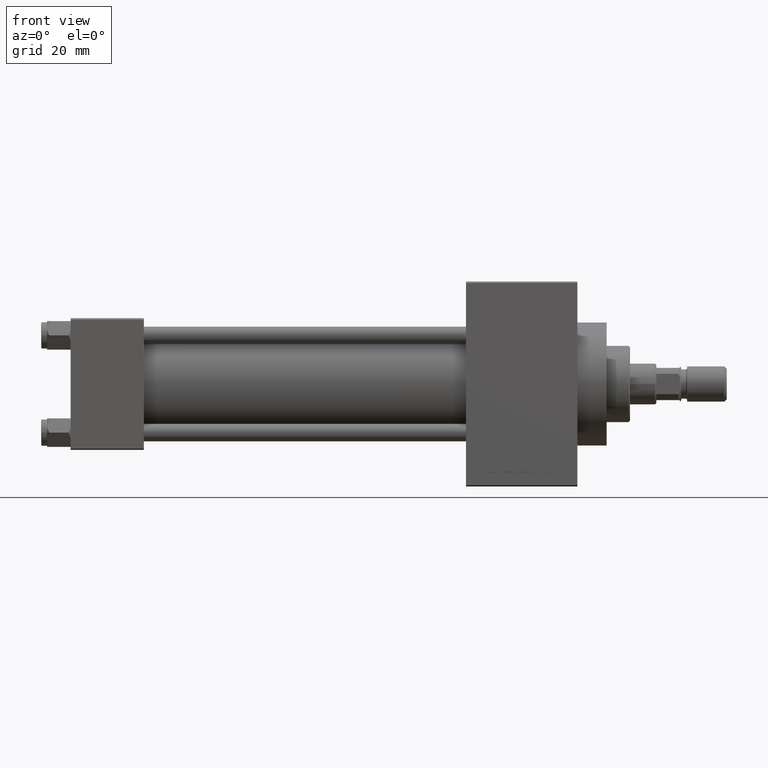
[diagram: clean part render]
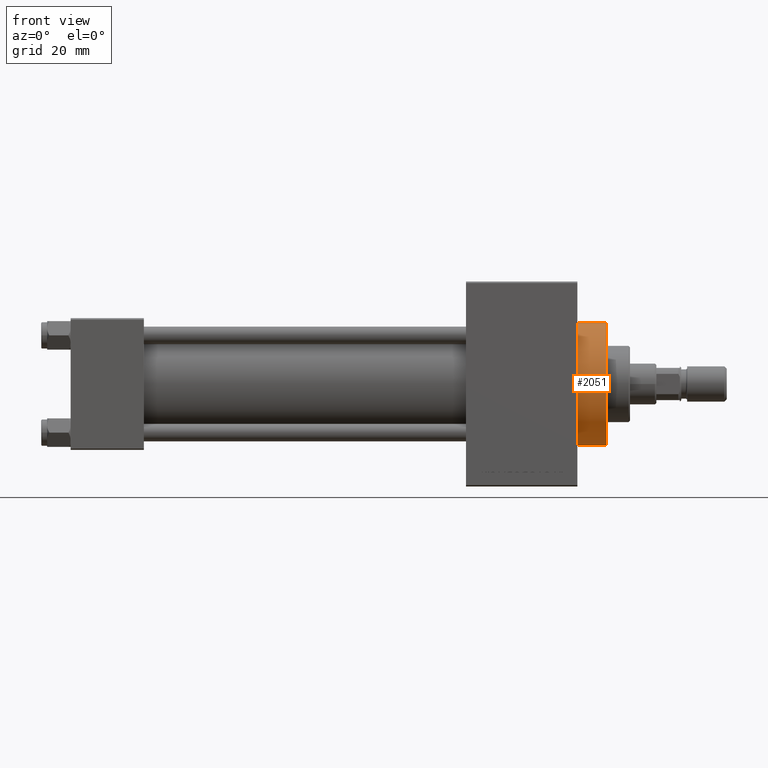
[diagram: same view with one face highlighted and labeled with its STEP entity id]
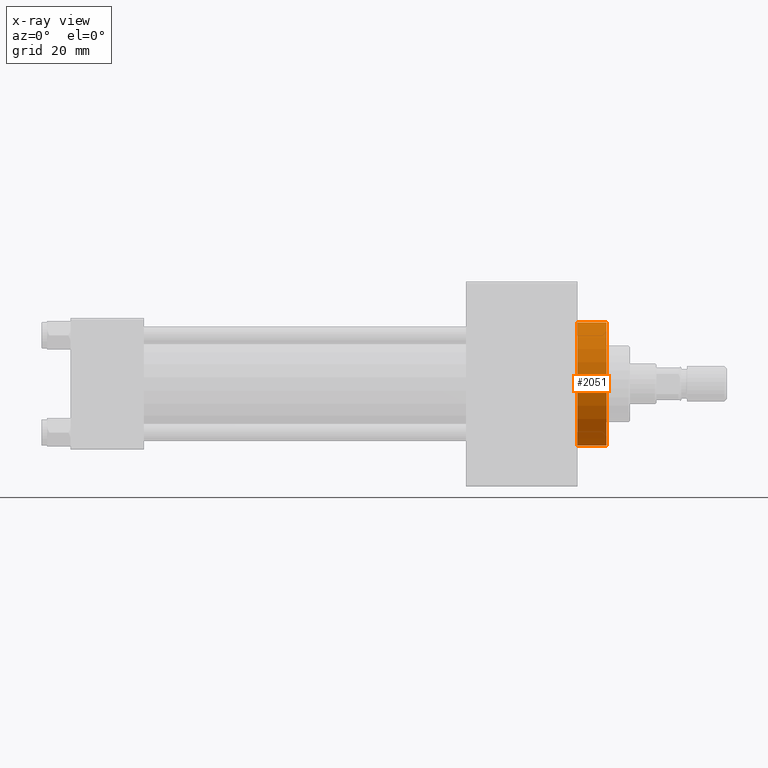
[diagram: x-ray of the same camera — body ghosted, the highlighted face saturated]
A machine part, front view. The second image highlights one B-rep face of the part: STEP entity #2051.
The next image is the same camera in x-ray: the body ghosted, the highlighted face saturated — about 0% of this face is hidden behind the body in this view.
In plain terms, the highlighted cylindrical surface (partial cylindrical patch) has radius 21 mm, axis along (-1, -0, -0).
Its self-contained STEP definition (entity closure, byte-faithful):
#450 = DIRECTION ( 'NONE',  ( 0.000000000000000000, 0.000000000000000000, 1.000000000000000000 ) ) ;
#2051 = ADVANCED_FACE ( 'NONE', ( #34764 ), #8204, .T. ) ;
#3027 = VERTEX_POINT ( 'NONE', #10419 ) ;
#3445 = AXIS2_PLACEMENT_3D ( 'NONE', #31102, #46343, #8970 ) ;
#5329 = CARTESIAN_POINT ( 'NONE',  ( 183.0000000000000284, 0.000000000000000000, 21.00000000000000000 ) ) ;
#7644 = VECTOR ( 'NONE', #14161, 1000.000000000000000 ) ;
#8204 = CYLINDRICAL_SURFACE ( 'NONE', #45529, 21.00000000000000000 ) ;
#8880 = ORIENTED_EDGE ( 'NONE', *, *, #34879, .T. ) ;
#8970 = DIRECTION ( 'NONE',  ( 0.000000000000000000, 0.000000000000000000, -1.000000000000000000 ) ) ;
#9217 = LINE ( 'NONE', #36495, #48210 ) ;
#10419 = CARTESIAN_POINT ( 'NONE',  ( 173.0000000000000284, 2.571758278209441661E-15, -21.00000000000000000 ) ) ;
#14161 = DIRECTION ( 'NONE',  ( -1.000000000000000000, -0.000000000000000000, -0.000000000000000000 ) ) ;
#15473 = CARTESIAN_POINT ( 'NONE',  ( 173.0000000000000284, 0.000000000000000000, 21.00000000000000000 ) ) ;
#18386 = VERTEX_POINT ( 'NONE', #28568 ) ;
#19921 = EDGE_CURVE ( 'NONE', #18386, #3027, #21177, .T. ) ;
#19984 = CARTESIAN_POINT ( 'NONE',  ( 183.0000000000000284, 0.000000000000000000, 0.000000000000000000 ) ) ;
#20272 = AXIS2_PLACEMENT_3D ( 'NONE', #45363, #46096, #41870 ) ;
#21177 = LINE ( 'NONE', #48441, #7644 ) ;
#25040 = CIRCLE ( 'NONE', #3445, 21.00000000000000000 ) ;
#27188 = ORIENTED_EDGE ( 'NONE', *, *, #19921, .F. ) ;
#27774 = DIRECTION ( 'NONE',  ( -1.000000000000000000, -0.000000000000000000, -0.000000000000000000 ) ) ;
#28568 = CARTESIAN_POINT ( 'NONE',  ( 183.0000000000000284, 2.571758278209441661E-15, -21.00000000000000000 ) ) ;
#31102 = CARTESIAN_POINT ( 'NONE',  ( 183.0000000000000284, 0.000000000000000000, 0.000000000000000000 ) ) ;
#32320 = EDGE_LOOP ( 'NONE', ( #27188, #46694, #44652, #8880 ) ) ;
#34764 = FACE_OUTER_BOUND ( 'NONE', #32320, .T. ) ;
#34879 = EDGE_CURVE ( 'NONE', #41045, #3027, #43400, .T. ) ;
#35129 = EDGE_CURVE ( 'NONE', #40213, #18386, #25040, .T. ) ;
#36495 = CARTESIAN_POINT ( 'NONE',  ( 183.0000000000000284, 0.000000000000000000, 21.00000000000000000 ) ) ;
#38362 = EDGE_CURVE ( 'NONE', #40213, #41045, #9217, .T. ) ;
#39238 = DIRECTION ( 'NONE',  ( -1.000000000000000000, -0.000000000000000000, -0.000000000000000000 ) ) ;
#40213 = VERTEX_POINT ( 'NONE', #5329 ) ;
#41045 = VERTEX_POINT ( 'NONE', #15473 ) ;
#41870 = DIRECTION ( 'NONE',  ( 0.000000000000000000, 0.000000000000000000, -1.000000000000000000 ) ) ;
#43400 = CIRCLE ( 'NONE', #20272, 21.00000000000000000 ) ;
#44652 = ORIENTED_EDGE ( 'NONE', *, *, #38362, .T. ) ;
#45363 = CARTESIAN_POINT ( 'NONE',  ( 173.0000000000000284, 0.000000000000000000, 0.000000000000000000 ) ) ;
#45529 = AXIS2_PLACEMENT_3D ( 'NONE', #19984, #39238, #450 ) ;
#46096 = DIRECTION ( 'NONE',  ( 1.000000000000000000, 0.000000000000000000, 0.000000000000000000 ) ) ;
#46343 = DIRECTION ( 'NONE',  ( 1.000000000000000000, 0.000000000000000000, 0.000000000000000000 ) ) ;
#46694 = ORIENTED_EDGE ( 'NONE', *, *, #35129, .F. ) ;
#48210 = VECTOR ( 'NONE', #27774, 1000.000000000000000 ) ;
#48441 = CARTESIAN_POINT ( 'NONE',  ( 183.0000000000000284, 2.571758278209441661E-15, -21.00000000000000000 ) ) ;